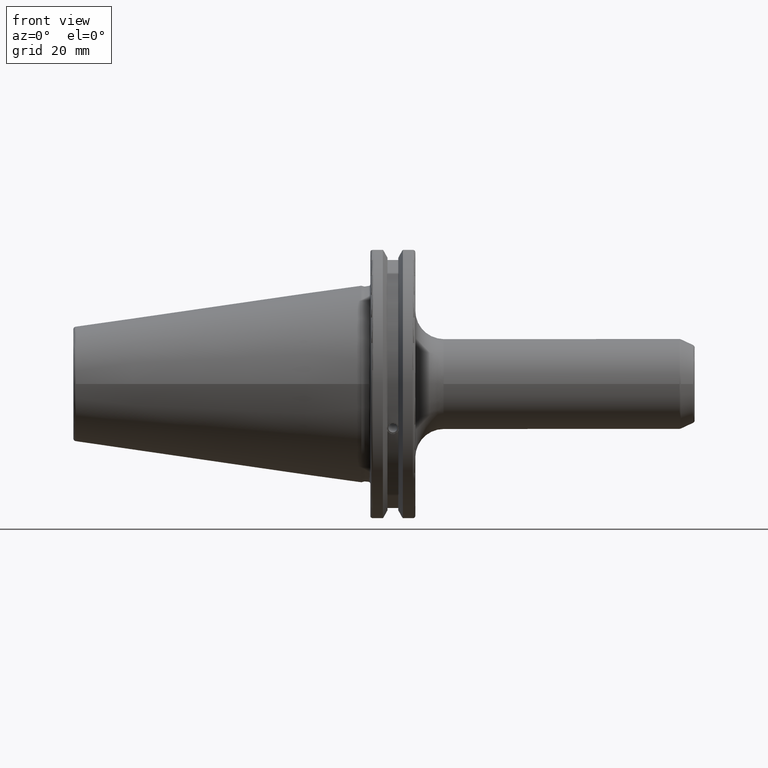
[diagram: clean part render]
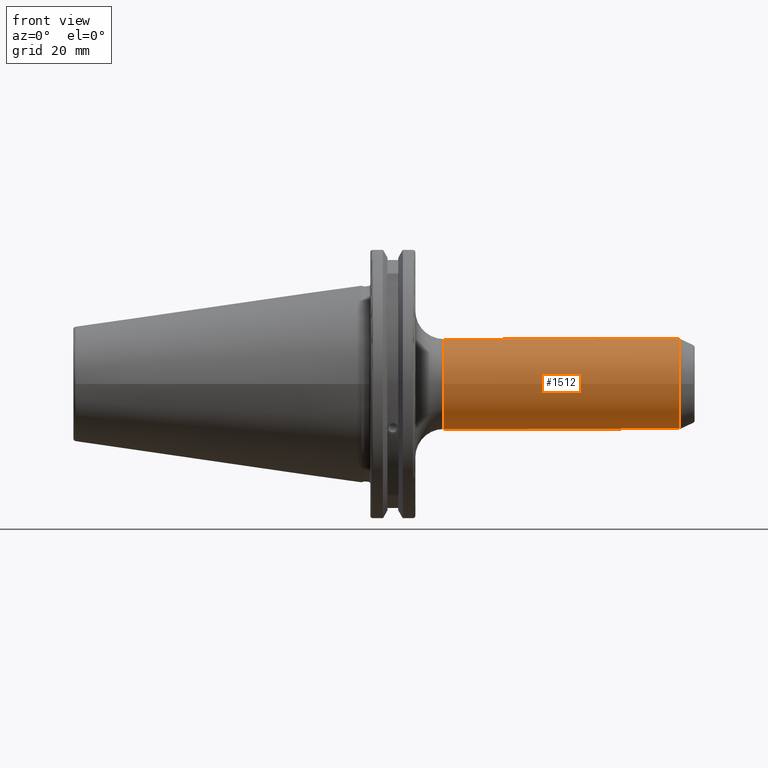
[diagram: same view with one face highlighted and labeled with its STEP entity id]
A machine part, front view. The second image highlights one B-rep face of the part: STEP entity #1512.
In plain terms, the highlighted cylindrical surface (bore or boss wall) has radius 15.875 mm, axis along (1, 0, 0).
Its self-contained STEP definition (entity closure, byte-faithful):
#59=FACE_BOUND('',#209,.T.);
#119=FACE_OUTER_BOUND('',#208,.T.);
#208=EDGE_LOOP('',(#1030,#1031,#1032,#1033,#1034,#1035));
#209=EDGE_LOOP('',(#1036,#1037));
#314=B_SPLINE_CURVE_WITH_KNOTS('',3,(#2283,#2284,#2285,#2286,#2287,#2288,
#2289,#2290,#2291,#2292,#2293,#2294,#2295,#2296,#2297,#2298,#2299,#2300,
#2301,#2302,#2303,#2304,#2305,#2306,#2307,#2308),.UNSPECIFIED.,.F.,.F.,
(4,2,2,2,2,2,2,2,2,2,2,2,4),(0.,0.207543507115612,0.415087014231224,0.630832350246653,
0.846577686262082,1.06232302227751,1.27806835829294,1.48561186540855,1.69315537252416,
1.90069887963978,2.10824238675539,2.32398772277082,2.53973305878625),
 .UNSPECIFIED.);
#315=B_SPLINE_CURVE_WITH_KNOTS('',3,(#2309,#2310,#2311,#2312,#2313,#2314,
#2315,#2316,#2317,#2318),.UNSPECIFIED.,.F.,.F.,(4,2,2,2,4),(2.53973305878625,
2.75547839480168,2.97122373081711,3.17876723793272,3.38631074504833),
 .UNSPECIFIED.);
#356=LINE('',#2331,#450);
#450=VECTOR('',#1817,15.875);
#544=CIRCLE('',#1625,15.875);
#547=CIRCLE('',#1628,15.875);
#548=CIRCLE('',#1630,15.875);
#549=CIRCLE('',#1631,15.875);
#626=VERTEX_POINT('',#2280);
#627=VERTEX_POINT('',#2282);
#628=VERTEX_POINT('',#2320);
#629=VERTEX_POINT('',#2321);
#631=VERTEX_POINT('',#2328);
#632=VERTEX_POINT('',#2329);
#785=EDGE_CURVE('',#627,#626,#314,.T.);
#786=EDGE_CURVE('',#626,#627,#315,.T.);
#787=EDGE_CURVE('',#628,#629,#544,.T.);
#790=EDGE_CURVE('',#629,#628,#547,.T.);
#791=EDGE_CURVE('',#631,#632,#548,.T.);
#792=EDGE_CURVE('',#631,#628,#356,.T.);
#793=EDGE_CURVE('',#632,#631,#549,.T.);
#1030=ORIENTED_EDGE('',*,*,#791,.F.);
#1031=ORIENTED_EDGE('',*,*,#792,.T.);
#1032=ORIENTED_EDGE('',*,*,#790,.F.);
#1033=ORIENTED_EDGE('',*,*,#787,.F.);
#1034=ORIENTED_EDGE('',*,*,#792,.F.);
#1035=ORIENTED_EDGE('',*,*,#793,.F.);
#1036=ORIENTED_EDGE('',*,*,#785,.T.);
#1037=ORIENTED_EDGE('',*,*,#786,.T.);
#1482=CYLINDRICAL_SURFACE('',#1629,15.875);
#1512=ADVANCED_FACE('',(#119,#59),#1482,.T.);
#1625=AXIS2_PLACEMENT_3D('',#2322,#1805,#1806);
#1628=AXIS2_PLACEMENT_3D('',#2326,#1811,#1812);
#1629=AXIS2_PLACEMENT_3D('',#2327,#1813,#1814);
#1630=AXIS2_PLACEMENT_3D('',#2330,#1815,#1816);
#1631=AXIS2_PLACEMENT_3D('',#2332,#1818,#1819);
#1805=DIRECTION('center_axis',(-1.,0.,0.));
#1806=DIRECTION('ref_axis',(0.,-1.,-1.22464679914735E-16));
#1811=DIRECTION('center_axis',(-1.,0.,0.));
#1812=DIRECTION('ref_axis',(0.,-1.,-1.22464679914735E-16));
#1813=DIRECTION('center_axis',(1.,0.,0.));
#1814=DIRECTION('ref_axis',(0.,1.,0.));
#1815=DIRECTION('center_axis',(1.,0.,0.));
#1816=DIRECTION('ref_axis',(0.,-1.,1.83697019872103E-16));
#1817=DIRECTION('',(-1.,0.,0.));
#1818=DIRECTION('center_axis',(1.,0.,0.));
#1819=DIRECTION('ref_axis',(0.,-1.,1.83697019872103E-16));
#2280=CARTESIAN_POINT('',(91.6,15.875,7.34788079488411E-16));
#2282=CARTESIAN_POINT('',(97.6,15.0186163196344,-5.14361631963445));
#2283=CARTESIAN_POINT('Ctrl Pts',(97.6,15.0186163196344,-5.14361631963445));
#2284=CARTESIAN_POINT('Ctrl Pts',(98.2918116903854,15.0186163196344,-5.14361631963445));
#2285=CARTESIAN_POINT('Ctrl Pts',(99.0365020852949,15.0578170948298,-5.03355240863755));
#2286=CARTESIAN_POINT('Ctrl Pts',(100.437203393131,15.2046276753764,-4.57097446832627));
#2287=CARTESIAN_POINT('Ctrl Pts',(101.093440788813,15.3103712690291,-4.21855586262023));
#2288=CARTESIAN_POINT('Ctrl Pts',(102.19278946978,15.5219418895606,-3.35978557749272));
#2289=CARTESIAN_POINT('Ctrl Pts',(102.707065419618,15.6433812251048,-2.78273456296779));
#2290=CARTESIAN_POINT('Ctrl Pts',(103.411335308669,15.8214627352331,-1.46298028280466));
#2291=CARTESIAN_POINT('Ctrl Pts',(103.6,15.875,-0.71915112005143));
#2292=CARTESIAN_POINT('Ctrl Pts',(103.6,15.875,0.71915112005143));
#2293=CARTESIAN_POINT('Ctrl Pts',(103.411335308669,15.8214627352331,1.46298028280464));
#2294=CARTESIAN_POINT('Ctrl Pts',(102.707065419618,15.6433812251048,2.78273456296777));
#2295=CARTESIAN_POINT('Ctrl Pts',(102.19278946978,15.5219418895606,3.35978557749272));
#2296=CARTESIAN_POINT('Ctrl Pts',(101.093440788813,15.3103712690291,4.21855586262023));
#2297=CARTESIAN_POINT('Ctrl Pts',(100.437203393131,15.2046276753764,4.57097446832628));
#2298=CARTESIAN_POINT('Ctrl Pts',(99.0365020852949,15.0578170948298,5.03355240863755));
#2299=CARTESIAN_POINT('Ctrl Pts',(98.2918116903854,15.0186163196344,5.14361631963445));
#2300=CARTESIAN_POINT('Ctrl Pts',(96.9081883096146,15.0186163196344,5.14361631963445));
#2301=CARTESIAN_POINT('Ctrl Pts',(96.1634979147051,15.0578170948298,5.03355240863755));
#2302=CARTESIAN_POINT('Ctrl Pts',(94.7627966068694,15.2046276753764,4.57097446832627));
#2303=CARTESIAN_POINT('Ctrl Pts',(94.1065592111874,15.3103712690291,4.21855586262023));
#2304=CARTESIAN_POINT('Ctrl Pts',(93.0072105302196,15.5219418895606,3.35978557749272));
#2305=CARTESIAN_POINT('Ctrl Pts',(92.4929345803824,15.6433812251048,2.78273456296777));
#2306=CARTESIAN_POINT('Ctrl Pts',(91.7886646913306,15.8214627352331,1.46298028280464));
#2307=CARTESIAN_POINT('Ctrl Pts',(91.6,15.875,0.71915112005143));
#2308=CARTESIAN_POINT('Ctrl Pts',(91.6,15.875,8.32667268468867E-16));
#2309=CARTESIAN_POINT('Ctrl Pts',(91.6,15.875,-6.93889390390723E-17));
#2310=CARTESIAN_POINT('Ctrl Pts',(91.6,15.875,-0.719151120051431));
#2311=CARTESIAN_POINT('Ctrl Pts',(91.7886646913306,15.8214627352331,-1.46298028280464));
#2312=CARTESIAN_POINT('Ctrl Pts',(92.4929345803824,15.6433812251048,-2.78273456296777));
#2313=CARTESIAN_POINT('Ctrl Pts',(93.0072105302196,15.5219418895606,-3.35978557749273));
#2314=CARTESIAN_POINT('Ctrl Pts',(94.1065592111874,15.3103712690291,-4.21855586262023));
#2315=CARTESIAN_POINT('Ctrl Pts',(94.7627966068694,15.2046276753764,-4.57097446832627));
#2316=CARTESIAN_POINT('Ctrl Pts',(96.1634979147051,15.0578170948298,-5.03355240863755));
#2317=CARTESIAN_POINT('Ctrl Pts',(96.9081883096146,15.0186163196344,-5.14361631963445));
#2318=CARTESIAN_POINT('Ctrl Pts',(97.6,15.0186163196344,-5.14361631963445));
#2320=CARTESIAN_POINT('',(29.05,-15.875,-1.94412679364642E-15));
#2321=CARTESIAN_POINT('',(29.05,-1.94412679364642E-15,-15.875));
#2322=CARTESIAN_POINT('Origin',(29.05,0.,0.));
#2326=CARTESIAN_POINT('Origin',(29.05,0.,0.));
#2327=CARTESIAN_POINT('Origin',(65.7783980318949,0.,0.));
#2328=CARTESIAN_POINT('',(112.285101401147,-15.875,-1.94412679364642E-15));
#2329=CARTESIAN_POINT('',(112.285101401147,-1.94412679364642E-15,15.875));
#2330=CARTESIAN_POINT('Origin',(112.285101401147,0.,0.));
#2331=CARTESIAN_POINT('',(65.7783980318949,-15.875,-1.94412679364642E-15));
#2332=CARTESIAN_POINT('Origin',(112.285101401147,0.,0.));